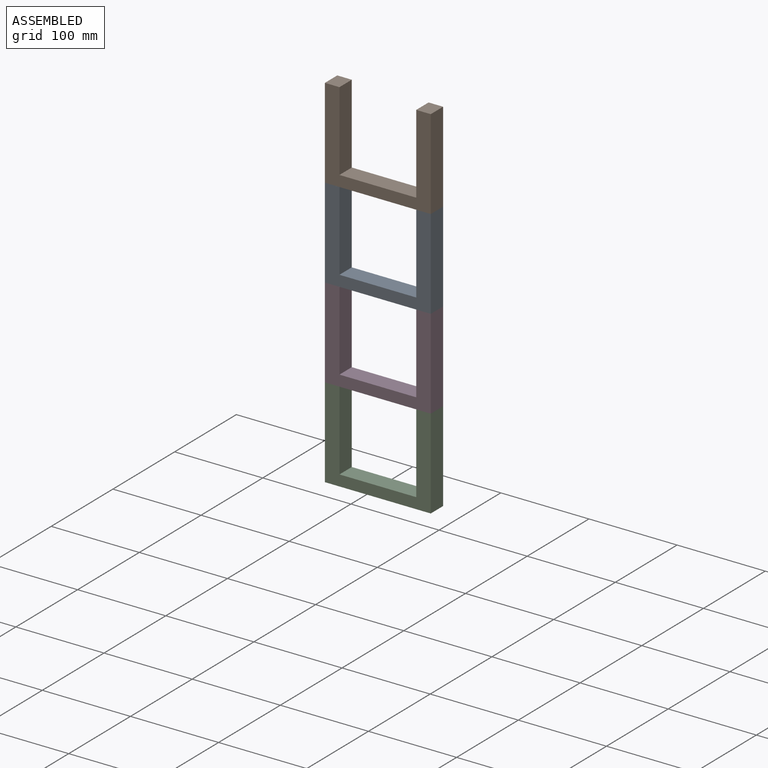
[diagram: assembled view]
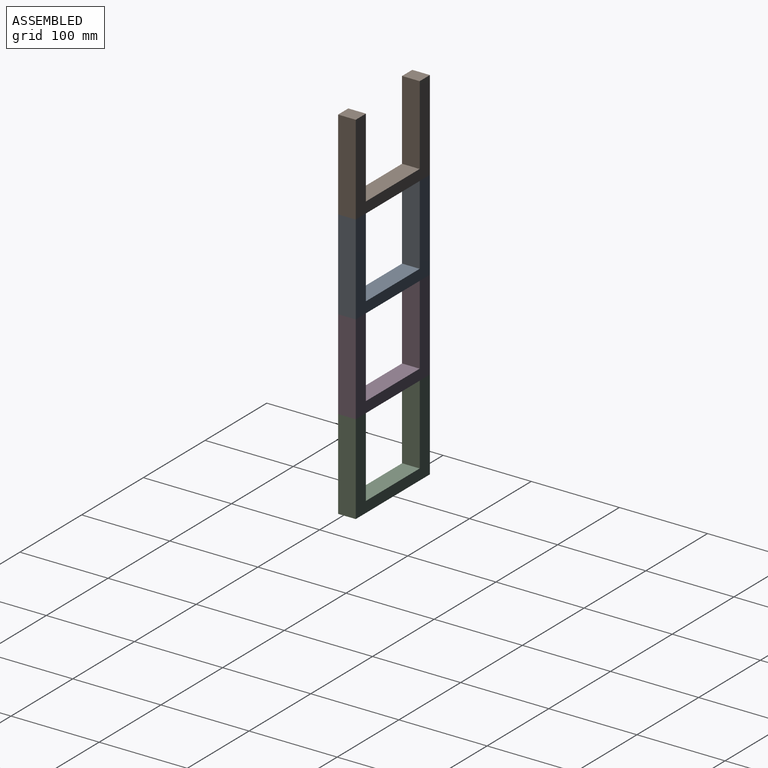
[diagram: assembled view, second angle]
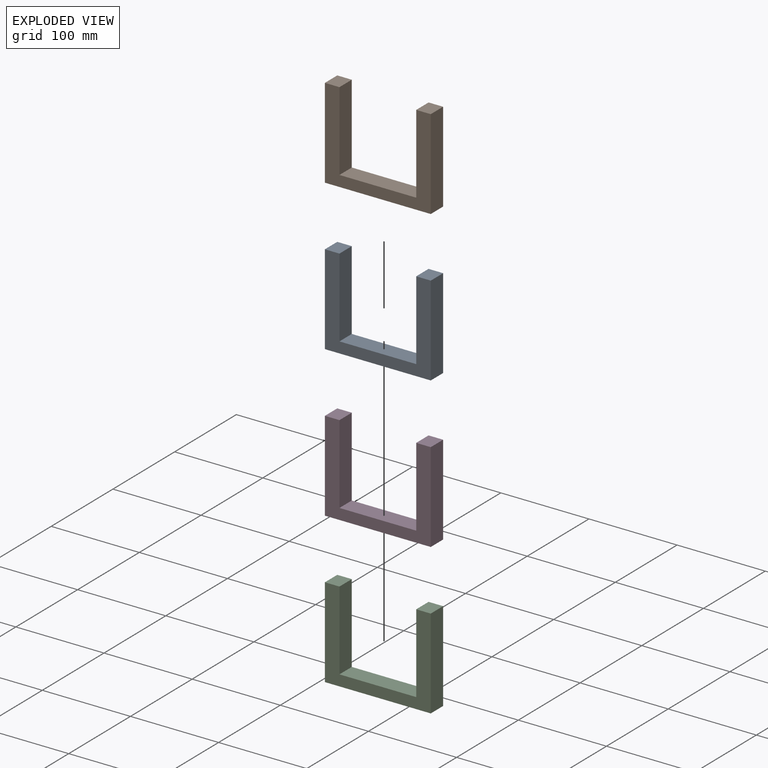
[diagram: exploded view]
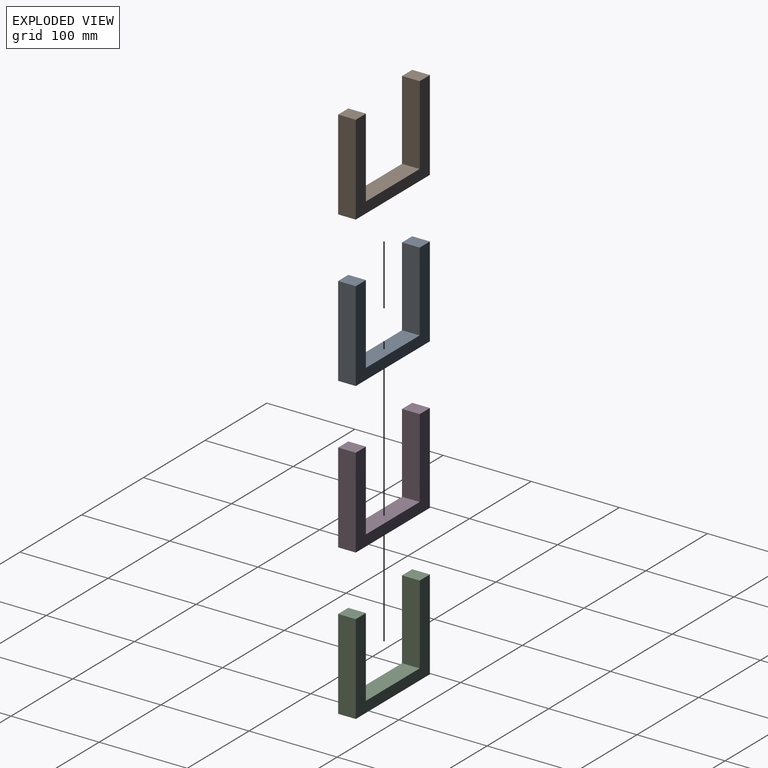
[diagram: exploded view, second angle]
ASSEMBLY  parts=4 mates=3
PART A: 10 faces, bbox 120.1x20x102.4 mm
  f0: plane 102.35x20mm, normal (-1,0,0), area 2047.1mm2, adj f1,f7,f8,f9
  f1: plane 120.11x20mm, normal (0,0,-1), area 2402.2mm2, adj f0,f2,f8,f9
  f2: plane 102.35x20mm, normal (1,0,0), area 2047.1mm2, adj f1,f3,f8,f9
  f3: plane 20x16.51mm, normal (0,0,1), area 330.2mm2, adj f2,f4,f8,f9
  f4: plane 90.02x20mm, normal (-1,0,0), area 1800.4mm2, adj f3,f5,f8,f9
  f5: plane 87.09x20mm, normal (0,0,1), area 1741.8mm2, adj f4,f6,f8,f9
  f6: plane 90.02x20mm, normal (1,0,0), area 1800.4mm2, adj f5,f7,f8,f9
  f7: plane 20x16.51mm, normal (0,0,1), area 330.2mm2, adj f0,f6,f8,f9
  f8: plane 120.11x102.35mm, normal (0,-1,0), area 4454mm2, adj f0,f1,f2,f3,f4,f5,f6,f7
  f9: plane 120.11x102.35mm, normal (0,1,0), area 4454mm2, adj f0,f1,f2,f3,f4,f5,f6,f7
PART B: same geometry as A
PART C: same geometry as A
PART D: same geometry as A
PLACE A t=(72.78,-125.92,207.37)mm
PLACE B t=(72.78,-125.92,309.73)mm
PLACE C t=(72.78,-125.92,2.66)mm
PLACE D t=(72.78,-125.92,105.02)mm
MATE fastened A.f3 <-> B.f1  axis (0,0,1) through (124.58,-135.92,253.85)mm
MATE fastened A.f1 <-> D.f3  axis (0,0,-1) through (124.58,-135.92,151.5)mm
MATE fastened C.f3 <-> D.f1  axis (0,0,1) through (124.58,-135.92,49.14)mm
